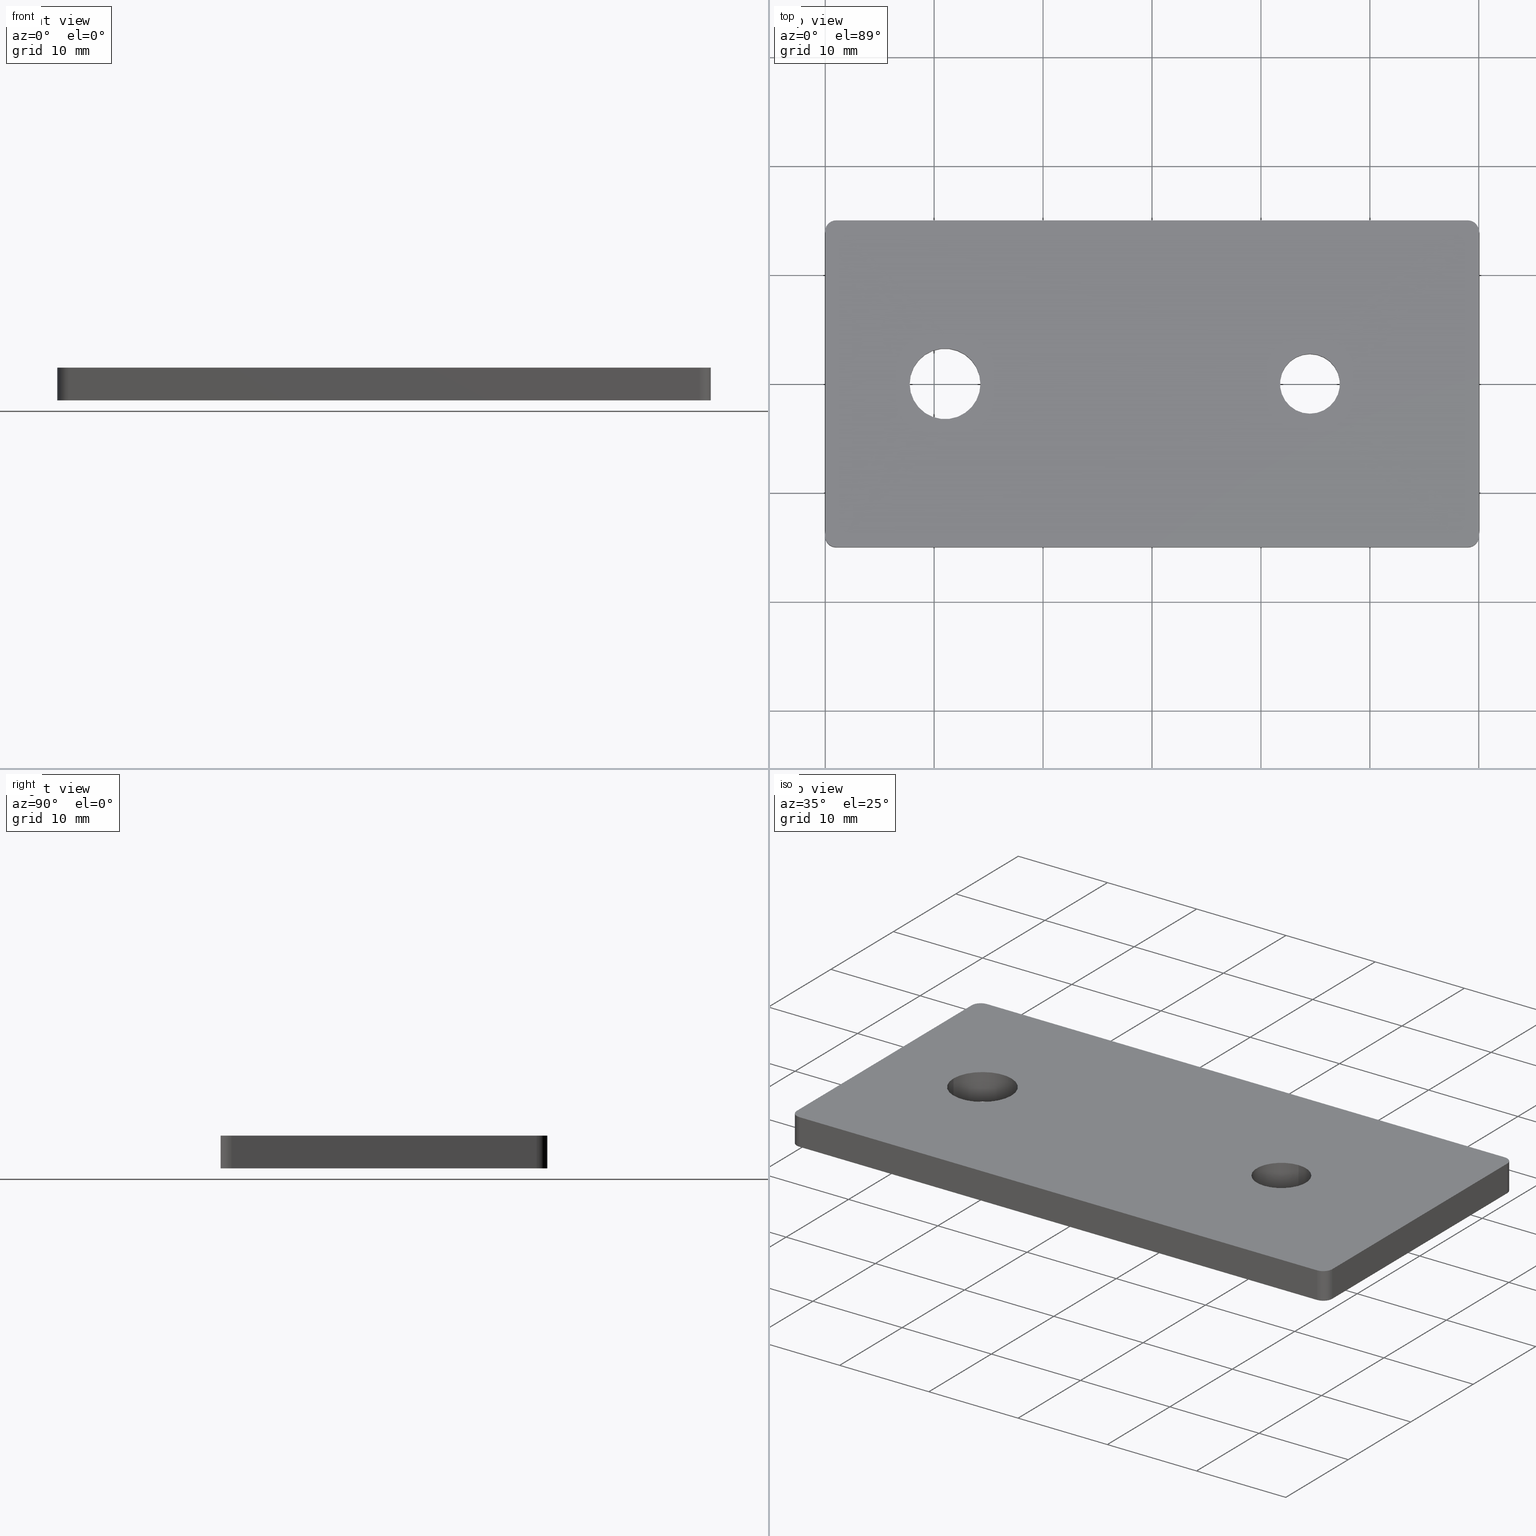
[diagram: canonical four-view strip — front | top / right | iso, engineering-drawing reading convention]
A machine part, canonical four-view strip (front | top / right | iso — engineering-drawing reading convention). The complete STEP part file that produces these views, byte-faithful:
ISO-10303-21;
HEADER;
/****************************************************************
 * Generated by software with PDE/Lib inside                    *
 * PDElib Version v4.4, created Mon 02/23/2004                  *
 * International Technegroup Inc. (www.iti-oh.com)              *
 ****************************************************************/
FILE_DESCRIPTION(('STEP AP203'),'2;1');
FILE_NAME('27.201.01.stp','2011-02-14T10:25:53',(''),(''),'2009.3.110','THINKDESIGN','');
FILE_SCHEMA(('CONFIG_CONTROL_DESIGN'));
ENDSEC;
DATA;
#2=CARTESIAN_POINT('',(-49.0,0.0,-9.999994E-009));
#3=DIRECTION('',(0.0,0.0,1.0));
#4=DIRECTION('',(0.0,1.0,0.0));
#5=AXIS2_PLACEMENT_3D('',#2,#3,#4);
#6=CYLINDRICAL_SURFACE('',#5,3.250000000000002);
#7=CARTESIAN_POINT('',(-52.250000000000000,3.552714E-015,0.0));
#8=VERTEX_POINT('',#7);
#9=CARTESIAN_POINT('',(-45.750000000000000,3.552714E-015,0.0));
#10=VERTEX_POINT('',#9);
#11=CARTESIAN_POINT('',(-49.0,3.552714E-015,0.0));
#12=DIRECTION('',(0.0,0.0,1.0));
#13=DIRECTION('',(1.0,0.0,0.0));
#14=AXIS2_PLACEMENT_3D('',#11,#12,#13);
#15=CIRCLE('',#14,3.250000000000002);
#16=EDGE_CURVE('',#8,#10,#15,.T.);
#17=ORIENTED_EDGE('',*,*,#16,.F.);
#18=CARTESIAN_POINT('',(-52.250000000000000,3.552714E-015,3.0));
#19=VERTEX_POINT('',#18);
#20=CARTESIAN_POINT('',(-52.250000000000000,3.552714E-015,0.0));
#21=DIRECTION('',(0.0,0.0,1.0));
#22=VECTOR('',#21,3.0);
#23=LINE('',#20,#22);
#24=EDGE_CURVE('',#8,#19,#23,.T.);
#25=ORIENTED_EDGE('',*,*,#24,.T.);
#26=CARTESIAN_POINT('',(-45.750000000000000,3.552714E-015,3.0));
#27=VERTEX_POINT('',#26);
#28=CARTESIAN_POINT('',(-49.0,3.552714E-015,3.0));
#29=DIRECTION('',(0.0,0.0,1.0));
#30=DIRECTION('',(0.0,1.0,0.0));
#31=AXIS2_PLACEMENT_3D('',#28,#29,#30);
#32=CIRCLE('',#31,3.250000000000000);
#33=EDGE_CURVE('',#19,#27,#32,.T.);
#34=ORIENTED_EDGE('',*,*,#33,.T.);
#35=CARTESIAN_POINT('',(-45.750000000000000,3.552714E-015,0.0));
#36=DIRECTION('',(0.0,0.0,1.0));
#37=VECTOR('',#36,3.0);
#38=LINE('',#35,#37);
#39=EDGE_CURVE('',#10,#27,#38,.T.);
#40=ORIENTED_EDGE('',*,*,#39,.F.);
#41=EDGE_LOOP('',(#17,#25,#34,#40));
#42=FACE_OUTER_BOUND('',#41,.T.);
#43=ADVANCED_FACE('',(#42),#6,.F.);
#44=CARTESIAN_POINT('',(-15.500000000000004,7.105427E-015,3.000000010000000));
#45=DIRECTION('',(0.0,0.0,-1.0));
#46=DIRECTION('',(-1.0,0.0,0.0));
#47=AXIS2_PLACEMENT_3D('',#44,#45,#46);
#48=CYLINDRICAL_SURFACE('',#47,2.749999999999999);
#49=CARTESIAN_POINT('',(-15.500000000000004,2.750000000000000,3.0));
#50=VERTEX_POINT('',#49);
#51=CARTESIAN_POINT('',(-15.500000000000004,-2.749999999999996,3.0));
#52=VERTEX_POINT('',#51);
#53=CARTESIAN_POINT('',(-15.500000000000004,3.552714E-015,3.0));
#54=DIRECTION('',(0.0,0.0,-1.0));
#55=DIRECTION('',(0.0,-1.0,0.0));
#56=AXIS2_PLACEMENT_3D('',#53,#54,#55);
#57=CIRCLE('',#56,2.749999999999999);
#58=EDGE_CURVE('',#50,#52,#57,.T.);
#59=ORIENTED_EDGE('',*,*,#58,.F.);
#60=CARTESIAN_POINT('',(-15.500000000000004,2.750000000000000,0.0));
#61=VERTEX_POINT('',#60);
#62=CARTESIAN_POINT('',(-15.500000000000004,2.750000000000000,3.0));
#63=DIRECTION('',(0.0,0.0,-1.0));
#64=VECTOR('',#63,3.0);
#65=LINE('',#62,#64);
#66=EDGE_CURVE('',#50,#61,#65,.T.);
#67=ORIENTED_EDGE('',*,*,#66,.T.);
#68=CARTESIAN_POINT('',(-15.500000000000004,-2.749999999999996,0.0));
#69=VERTEX_POINT('',#68);
#70=CARTESIAN_POINT('',(-15.500000000000004,3.552714E-015,0.0));
#71=DIRECTION('',(0.0,0.0,1.0));
#72=DIRECTION('',(1.0,0.0,0.0));
#73=AXIS2_PLACEMENT_3D('',#70,#71,#72);
#74=CIRCLE('',#73,2.750000000000003);
#75=EDGE_CURVE('',#69,#61,#74,.T.);
#76=ORIENTED_EDGE('',*,*,#75,.F.);
#77=CARTESIAN_POINT('',(-15.500000000000004,-2.749999999999996,3.0));
#78=DIRECTION('',(0.0,0.0,-1.0));
#79=VECTOR('',#78,3.0);
#80=LINE('',#77,#79);
#81=EDGE_CURVE('',#52,#69,#80,.T.);
#82=ORIENTED_EDGE('',*,*,#81,.F.);
#83=EDGE_LOOP('',(#59,#67,#76,#82));
#84=FACE_OUTER_BOUND('',#83,.T.);
#85=ADVANCED_FACE('',(#84),#48,.F.);
#86=CARTESIAN_POINT('',(-59.0,-13.999999999999986,3.000000010000000));
#87=DIRECTION('',(0.0,0.0,-1.0));
#88=DIRECTION('',(0.707106781186547,0.707106781186548,0.0));
#89=AXIS2_PLACEMENT_3D('',#86,#87,#88);
#90=CYLINDRICAL_SURFACE('',#89,1.000000000000001);
#91=CARTESIAN_POINT('',(-60.0,-13.999999999999993,0.0));
#92=VERTEX_POINT('',#91);
#93=CARTESIAN_POINT('',(-59.0,-14.999999999999993,0.0));
#94=VERTEX_POINT('',#93);
#95=CARTESIAN_POINT('',(-59.0,-13.999999999999993,0.0));
#96=DIRECTION('',(0.0,0.0,1.0));
#97=DIRECTION('',(1.0,0.0,0.0));
#98=AXIS2_PLACEMENT_3D('',#95,#96,#97);
#99=CIRCLE('',#98,1.000000000000001);
#100=EDGE_CURVE('',#92,#94,#99,.T.);
#101=ORIENTED_EDGE('',*,*,#100,.T.);
#102=CARTESIAN_POINT('',(-59.0,-14.999999999999993,3.0));
#103=VERTEX_POINT('',#102);
#104=CARTESIAN_POINT('',(-59.0,-14.999999999999993,3.0));
#105=DIRECTION('',(0.0,0.0,-1.0));
#106=VECTOR('',#105,3.0);
#107=LINE('',#104,#106);
#108=EDGE_CURVE('',#103,#94,#107,.T.);
#109=ORIENTED_EDGE('',*,*,#108,.F.);
#110=CARTESIAN_POINT('',(-60.0,-13.999999999999993,3.0));
#111=VERTEX_POINT('',#110);
#112=CARTESIAN_POINT('',(-59.0,-13.999999999999993,3.0));
#113=DIRECTION('',(0.0,0.0,1.0));
#114=DIRECTION('',(1.0,0.0,0.0));
#115=AXIS2_PLACEMENT_3D('',#112,#113,#114);
#116=CIRCLE('',#115,1.000000000000001);
#117=EDGE_CURVE('',#111,#103,#116,.T.);
#118=ORIENTED_EDGE('',*,*,#117,.F.);
#119=CARTESIAN_POINT('',(-60.0,-13.999999999999993,3.0));
#120=DIRECTION('',(0.0,0.0,-1.0));
#121=VECTOR('',#120,3.0);
#122=LINE('',#119,#121);
#123=EDGE_CURVE('',#111,#92,#122,.T.);
#124=ORIENTED_EDGE('',*,*,#123,.T.);
#125=EDGE_LOOP('',(#101,#109,#118,#124));
#126=FACE_OUTER_BOUND('',#125,.T.);
#127=ADVANCED_FACE('',(#126),#90,.T.);
#128=CARTESIAN_POINT('',(-61.900000000000006,-14.999999999999993,-0.150000000000000));
#129=DIRECTION('',(0.0,1.0,0.0));
#130=DIRECTION('',(0.0,0.0,1.0));
#131=AXIS2_PLACEMENT_3D('',#128,#129,#130);
#132=PLANE('',#131);
#133=CARTESIAN_POINT('',(-1.0,-14.999999999999993,0.0));
#134=VERTEX_POINT('',#133);
#135=CARTESIAN_POINT('',(-59.0,-14.999999999999993,0.0));
#136=DIRECTION('',(1.0,0.0,0.0));
#137=VECTOR('',#136,58.0);
#138=LINE('',#135,#137);
#139=EDGE_CURVE('',#94,#134,#138,.T.);
#140=ORIENTED_EDGE('',*,*,#139,.T.);
#141=CARTESIAN_POINT('',(-1.0,-14.999999999999993,3.0));
#142=VERTEX_POINT('',#141);
#143=CARTESIAN_POINT('',(-1.0,-14.999999999999993,3.0));
#144=DIRECTION('',(0.0,0.0,-1.0));
#145=VECTOR('',#144,3.0);
#146=LINE('',#143,#145);
#147=EDGE_CURVE('',#142,#134,#146,.T.);
#148=ORIENTED_EDGE('',*,*,#147,.F.);
#149=CARTESIAN_POINT('',(-59.0,-14.999999999999993,3.0));
#150=DIRECTION('',(1.0,0.0,0.0));
#151=VECTOR('',#150,58.0);
#152=LINE('',#149,#151);
#153=EDGE_CURVE('',#103,#142,#152,.T.);
#154=ORIENTED_EDGE('',*,*,#153,.F.);
#155=ORIENTED_EDGE('',*,*,#108,.T.);
#156=EDGE_LOOP('',(#140,#148,#154,#155));
#157=FACE_OUTER_BOUND('',#156,.T.);
#158=ADVANCED_FACE('',(#157),#132,.F.);
#159=CARTESIAN_POINT('',(-1.0,-13.999999999999993,3.000000010000000));
#160=DIRECTION('',(0.0,0.0,-1.0));
#161=DIRECTION('',(-1.0,0.0,0.0));
#162=AXIS2_PLACEMENT_3D('',#159,#160,#161);
#163=CYLINDRICAL_SURFACE('',#162,1.000000000000001);
#164=CARTESIAN_POINT('',(0.0,-13.999999999999993,0.0));
#165=VERTEX_POINT('',#164);
#166=CARTESIAN_POINT('',(-1.0,-13.999999999999993,0.0));
#167=DIRECTION('',(0.0,0.0,1.0));
#168=DIRECTION('',(-1.0,0.0,0.0));
#169=AXIS2_PLACEMENT_3D('',#166,#167,#168);
#170=CIRCLE('',#169,1.000000000000001);
#171=EDGE_CURVE('',#134,#165,#170,.T.);
#172=ORIENTED_EDGE('',*,*,#171,.T.);
#173=CARTESIAN_POINT('',(0.0,-13.999999999999993,3.0));
#174=VERTEX_POINT('',#173);
#175=CARTESIAN_POINT('',(0.0,-13.999999999999993,3.0));
#176=DIRECTION('',(0.0,0.0,-1.0));
#177=VECTOR('',#176,3.0);
#178=LINE('',#175,#177);
#179=EDGE_CURVE('',#174,#165,#178,.T.);
#180=ORIENTED_EDGE('',*,*,#179,.F.);
#181=CARTESIAN_POINT('',(-1.0,-13.999999999999993,3.0));
#182=DIRECTION('',(0.0,0.0,1.0));
#183=DIRECTION('',(-1.0,0.0,0.0));
#184=AXIS2_PLACEMENT_3D('',#181,#182,#183);
#185=CIRCLE('',#184,1.000000000000001);
#186=EDGE_CURVE('',#142,#174,#185,.T.);
#187=ORIENTED_EDGE('',*,*,#186,.F.);
#188=ORIENTED_EDGE('',*,*,#147,.T.);
#189=EDGE_LOOP('',(#172,#180,#187,#188));
#190=FACE_OUTER_BOUND('',#189,.T.);
#191=ADVANCED_FACE('',(#190),#163,.T.);
#192=CARTESIAN_POINT('',(0.0,-15.399999999999991,-0.150000000000000));
#193=DIRECTION('',(-1.0,0.0,0.0));
#194=DIRECTION('',(0.0,0.0,1.0));
#195=AXIS2_PLACEMENT_3D('',#192,#193,#194);
#196=PLANE('',#195);
#197=CARTESIAN_POINT('',(0.0,13.999999999999995,0.0));
#198=VERTEX_POINT('',#197);
#199=CARTESIAN_POINT('',(0.0,-13.999999999999993,0.0));
#200=DIRECTION('',(0.0,1.0,0.0));
#201=VECTOR('',#200,27.999999999999986);
#202=LINE('',#199,#201);
#203=EDGE_CURVE('',#165,#198,#202,.T.);
#204=ORIENTED_EDGE('',*,*,#203,.T.);
#205=CARTESIAN_POINT('',(0.0,13.999999999999995,3.0));
#206=VERTEX_POINT('',#205);
#207=CARTESIAN_POINT('',(0.0,13.999999999999995,3.0));
#208=DIRECTION('',(0.0,0.0,-1.0));
#209=VECTOR('',#208,3.0);
#210=LINE('',#207,#209);
#211=EDGE_CURVE('',#206,#198,#210,.T.);
#212=ORIENTED_EDGE('',*,*,#211,.F.);
#213=CARTESIAN_POINT('',(0.0,-13.999999999999993,3.0));
#214=DIRECTION('',(0.0,1.0,0.0));
#215=VECTOR('',#214,27.999999999999986);
#216=LINE('',#213,#215);
#217=EDGE_CURVE('',#174,#206,#216,.T.);
#218=ORIENTED_EDGE('',*,*,#217,.F.);
#219=ORIENTED_EDGE('',*,*,#179,.T.);
#220=EDGE_LOOP('',(#204,#212,#218,#219));
#221=FACE_OUTER_BOUND('',#220,.T.);
#222=ADVANCED_FACE('',(#221),#196,.F.);
#223=CARTESIAN_POINT('',(-1.0,13.999999999999996,3.000000010000000));
#224=DIRECTION('',(0.0,0.0,-1.0));
#225=DIRECTION('',(-1.0,0.0,0.0));
#226=AXIS2_PLACEMENT_3D('',#223,#224,#225);
#227=CYLINDRICAL_SURFACE('',#226,1.000000000000001);
#228=CARTESIAN_POINT('',(-1.0,14.999999999999996,0.0));
#229=VERTEX_POINT('',#228);
#230=CARTESIAN_POINT('',(-1.0,13.999999999999996,0.0));
#231=DIRECTION('',(0.0,0.0,1.0));
#232=DIRECTION('',(-1.0,0.0,0.0));
#233=AXIS2_PLACEMENT_3D('',#230,#231,#232);
#234=CIRCLE('',#233,1.000000000000001);
#235=EDGE_CURVE('',#198,#229,#234,.T.);
#236=ORIENTED_EDGE('',*,*,#235,.T.);
#237=CARTESIAN_POINT('',(-1.0,14.999999999999996,3.0));
#238=VERTEX_POINT('',#237);
#239=CARTESIAN_POINT('',(-1.0,14.999999999999996,3.0));
#240=DIRECTION('',(0.0,0.0,-1.0));
#241=VECTOR('',#240,3.0);
#242=LINE('',#239,#241);
#243=EDGE_CURVE('',#238,#229,#242,.T.);
#244=ORIENTED_EDGE('',*,*,#243,.F.);
#245=CARTESIAN_POINT('',(-1.0,13.999999999999996,3.0));
#246=DIRECTION('',(0.0,0.0,1.0));
#247=DIRECTION('',(-1.0,0.0,0.0));
#248=AXIS2_PLACEMENT_3D('',#245,#246,#247);
#249=CIRCLE('',#248,1.000000000000001);
#250=EDGE_CURVE('',#206,#238,#249,.T.);
#251=ORIENTED_EDGE('',*,*,#250,.F.);
#252=ORIENTED_EDGE('',*,*,#211,.T.);
#253=EDGE_LOOP('',(#236,#244,#251,#252));
#254=FACE_OUTER_BOUND('',#253,.T.);
#255=ADVANCED_FACE('',(#254),#227,.T.);
#256=CARTESIAN_POINT('',(-61.900000000000006,14.999999999999996,3.150000000000000));
#257=DIRECTION('',(0.0,-1.0,0.0));
#258=DIRECTION('',(0.0,0.0,-1.0));
#259=AXIS2_PLACEMENT_3D('',#256,#257,#258);
#260=PLANE('',#259);
#261=CARTESIAN_POINT('',(-59.0,14.999999999999996,0.0));
#262=VERTEX_POINT('',#261);
#263=CARTESIAN_POINT('',(-1.0,14.999999999999996,0.0));
#264=DIRECTION('',(-1.0,0.0,0.0));
#265=VECTOR('',#264,58.0);
#266=LINE('',#263,#265);
#267=EDGE_CURVE('',#229,#262,#266,.T.);
#268=ORIENTED_EDGE('',*,*,#267,.T.);
#269=CARTESIAN_POINT('',(-59.0,14.999999999999996,3.0));
#270=VERTEX_POINT('',#269);
#271=CARTESIAN_POINT('',(-59.0,14.999999999999996,3.0));
#272=DIRECTION('',(0.0,0.0,-1.0));
#273=VECTOR('',#272,3.0);
#274=LINE('',#271,#273);
#275=EDGE_CURVE('',#270,#262,#274,.T.);
#276=ORIENTED_EDGE('',*,*,#275,.F.);
#277=CARTESIAN_POINT('',(-1.0,14.999999999999996,3.0));
#278=DIRECTION('',(-1.0,0.0,0.0));
#279=VECTOR('',#278,58.0);
#280=LINE('',#277,#279);
#281=EDGE_CURVE('',#238,#270,#280,.T.);
#282=ORIENTED_EDGE('',*,*,#281,.F.);
#283=ORIENTED_EDGE('',*,*,#243,.T.);
#284=EDGE_LOOP('',(#268,#276,#282,#283));
#285=FACE_OUTER_BOUND('',#284,.T.);
#286=ADVANCED_FACE('',(#285),#260,.F.);
#287=CARTESIAN_POINT('',(-59.0,14.0,3.000000010000000));
#288=DIRECTION('',(0.0,0.0,-1.0));
#289=DIRECTION('',(0.707106781186547,-0.707106781186548,0.0));
#290=AXIS2_PLACEMENT_3D('',#287,#288,#289);
#291=CYLINDRICAL_SURFACE('',#290,1.000000000000001);
#292=CARTESIAN_POINT('',(-60.0,13.999999999999998,0.0));
#293=VERTEX_POINT('',#292);
#294=CARTESIAN_POINT('',(-59.0,13.999999999999996,0.0));
#295=DIRECTION('',(0.0,0.0,1.0));
#296=DIRECTION('',(1.0,0.0,0.0));
#297=AXIS2_PLACEMENT_3D('',#294,#295,#296);
#298=CIRCLE('',#297,1.000000000000001);
#299=EDGE_CURVE('',#262,#293,#298,.T.);
#300=ORIENTED_EDGE('',*,*,#299,.T.);
#301=CARTESIAN_POINT('',(-60.0,13.999999999999998,3.0));
#302=VERTEX_POINT('',#301);
#303=CARTESIAN_POINT('',(-60.0,13.999999999999998,3.0));
#304=DIRECTION('',(0.0,0.0,-1.0));
#305=VECTOR('',#304,3.0);
#306=LINE('',#303,#305);
#307=EDGE_CURVE('',#302,#293,#306,.T.);
#308=ORIENTED_EDGE('',*,*,#307,.F.);
#309=CARTESIAN_POINT('',(-59.0,13.999999999999996,3.0));
#310=DIRECTION('',(0.0,0.0,1.0));
#311=DIRECTION('',(1.0,0.0,0.0));
#312=AXIS2_PLACEMENT_3D('',#309,#310,#311);
#313=CIRCLE('',#312,1.000000000000001);
#314=EDGE_CURVE('',#270,#302,#313,.T.);
#315=ORIENTED_EDGE('',*,*,#314,.F.);
#316=ORIENTED_EDGE('',*,*,#275,.T.);
#317=EDGE_LOOP('',(#300,#308,#315,#316));
#318=FACE_OUTER_BOUND('',#317,.T.);
#319=ADVANCED_FACE('',(#318),#291,.T.);
#320=CARTESIAN_POINT('',(-60.0,-15.399999999999991,3.150000000000000));
#321=DIRECTION('',(1.0,0.0,0.0));
#322=DIRECTION('',(0.0,0.0,-1.0));
#323=AXIS2_PLACEMENT_3D('',#320,#321,#322);
#324=PLANE('',#323);
#325=CARTESIAN_POINT('',(-60.0,13.999999999999998,0.0));
#326=DIRECTION('',(0.0,-1.0,0.0));
#327=VECTOR('',#326,27.999999999999993);
#328=LINE('',#325,#327);
#329=EDGE_CURVE('',#293,#92,#328,.T.);
#330=ORIENTED_EDGE('',*,*,#329,.T.);
#331=ORIENTED_EDGE('',*,*,#123,.F.);
#332=CARTESIAN_POINT('',(-60.0,13.999999999999998,3.0));
#333=DIRECTION('',(0.0,-1.0,0.0));
#334=VECTOR('',#333,27.999999999999993);
#335=LINE('',#332,#334);
#336=EDGE_CURVE('',#302,#111,#335,.T.);
#337=ORIENTED_EDGE('',*,*,#336,.F.);
#338=ORIENTED_EDGE('',*,*,#307,.T.);
#339=EDGE_LOOP('',(#330,#331,#337,#338));
#340=FACE_OUTER_BOUND('',#339,.T.);
#341=ADVANCED_FACE('',(#340),#324,.F.);
#342=CARTESIAN_POINT('',(-63.0,-16.499999999999993,3.0));
#343=DIRECTION('',(0.0,0.0,1.0));
#344=DIRECTION('',(1.0,0.0,0.0));
#345=AXIS2_PLACEMENT_3D('',#342,#343,#344);
#346=PLANE('',#345);
#347=ORIENTED_EDGE('',*,*,#117,.T.);
#348=ORIENTED_EDGE('',*,*,#153,.T.);
#349=ORIENTED_EDGE('',*,*,#186,.T.);
#350=ORIENTED_EDGE('',*,*,#217,.T.);
#351=ORIENTED_EDGE('',*,*,#250,.T.);
#352=ORIENTED_EDGE('',*,*,#281,.T.);
#353=ORIENTED_EDGE('',*,*,#314,.T.);
#354=ORIENTED_EDGE('',*,*,#336,.T.);
#355=EDGE_LOOP('',(#347,#348,#349,#350,#351,#352,#353,#354));
#356=FACE_OUTER_BOUND('',#355,.T.);
#357=CARTESIAN_POINT('',(-15.500000000000004,3.552714E-015,3.0));
#358=DIRECTION('',(0.0,0.0,-1.0));
#359=DIRECTION('',(0.0,-1.0,0.0));
#360=AXIS2_PLACEMENT_3D('',#357,#358,#359);
#361=CIRCLE('',#360,2.749999999999999);
#362=EDGE_CURVE('',#52,#50,#361,.T.);
#363=ORIENTED_EDGE('',*,*,#362,.T.);
#364=ORIENTED_EDGE('',*,*,#58,.T.);
#365=EDGE_LOOP('',(#363,#364));
#366=FACE_BOUND('',#365,.T.);
#367=CARTESIAN_POINT('',(-49.0,3.552714E-015,3.0));
#368=DIRECTION('',(0.0,0.0,1.0));
#369=DIRECTION('',(0.0,1.0,0.0));
#370=AXIS2_PLACEMENT_3D('',#367,#368,#369);
#371=CIRCLE('',#370,3.250000000000000);
#372=EDGE_CURVE('',#27,#19,#371,.T.);
#373=ORIENTED_EDGE('',*,*,#372,.F.);
#374=ORIENTED_EDGE('',*,*,#33,.F.);
#375=EDGE_LOOP('',(#373,#374));
#376=FACE_BOUND('',#375,.T.);
#377=ADVANCED_FACE('',(#356,#366,#376),#346,.T.);
#378=CARTESIAN_POINT('',(-63.0,-16.499999999999993,0.0));
#379=DIRECTION('',(0.0,0.0,1.0));
#380=DIRECTION('',(1.0,0.0,0.0));
#381=AXIS2_PLACEMENT_3D('',#378,#379,#380);
#382=PLANE('',#381);
#383=ORIENTED_EDGE('',*,*,#100,.F.);
#384=ORIENTED_EDGE('',*,*,#329,.F.);
#385=ORIENTED_EDGE('',*,*,#299,.F.);
#386=ORIENTED_EDGE('',*,*,#267,.F.);
#387=ORIENTED_EDGE('',*,*,#235,.F.);
#388=ORIENTED_EDGE('',*,*,#203,.F.);
#389=ORIENTED_EDGE('',*,*,#171,.F.);
#390=ORIENTED_EDGE('',*,*,#139,.F.);
#391=EDGE_LOOP('',(#383,#384,#385,#386,#387,#388,#389,#390));
#392=FACE_OUTER_BOUND('',#391,.T.);
#393=ORIENTED_EDGE('',*,*,#75,.T.);
#394=CARTESIAN_POINT('',(-15.500000000000004,3.552714E-015,0.0));
#395=DIRECTION('',(0.0,0.0,1.0));
#396=DIRECTION('',(1.0,0.0,0.0));
#397=AXIS2_PLACEMENT_3D('',#394,#395,#396);
#398=CIRCLE('',#397,2.750000000000003);
#399=EDGE_CURVE('',#61,#69,#398,.T.);
#400=ORIENTED_EDGE('',*,*,#399,.T.);
#401=EDGE_LOOP('',(#393,#400));
#402=FACE_BOUND('',#401,.T.);
#403=CARTESIAN_POINT('',(-49.0,3.552714E-015,0.0));
#404=DIRECTION('',(0.0,0.0,1.0));
#405=DIRECTION('',(1.0,0.0,0.0));
#406=AXIS2_PLACEMENT_3D('',#403,#404,#405);
#407=CIRCLE('',#406,3.250000000000002);
#408=EDGE_CURVE('',#10,#8,#407,.T.);
#409=ORIENTED_EDGE('',*,*,#408,.T.);
#410=ORIENTED_EDGE('',*,*,#16,.T.);
#411=EDGE_LOOP('',(#409,#410));
#412=FACE_BOUND('',#411,.T.);
#413=ADVANCED_FACE('',(#392,#402,#412),#382,.F.);
#414=CARTESIAN_POINT('',(-15.500000000000004,3.552714E-015,3.000000010000000));
#415=DIRECTION('',(0.0,0.0,-1.0));
#416=DIRECTION('',(1.0,0.0,0.0));
#417=AXIS2_PLACEMENT_3D('',#414,#415,#416);
#418=CYLINDRICAL_SURFACE('',#417,2.749999999999999);
#419=ORIENTED_EDGE('',*,*,#66,.F.);
#420=ORIENTED_EDGE('',*,*,#362,.F.);
#421=ORIENTED_EDGE('',*,*,#81,.T.);
#422=ORIENTED_EDGE('',*,*,#399,.F.);
#423=EDGE_LOOP('',(#419,#420,#421,#422));
#424=FACE_OUTER_BOUND('',#423,.T.);
#425=ADVANCED_FACE('',(#424),#418,.F.);
#426=CARTESIAN_POINT('',(-49.0,0.0,-9.999994E-009));
#427=DIRECTION('',(0.0,0.0,1.0));
#428=DIRECTION('',(0.0,-1.0,0.0));
#429=AXIS2_PLACEMENT_3D('',#426,#427,#428);
#430=CYLINDRICAL_SURFACE('',#429,3.250000000000002);
#431=ORIENTED_EDGE('',*,*,#24,.F.);
#432=ORIENTED_EDGE('',*,*,#408,.F.);
#433=ORIENTED_EDGE('',*,*,#39,.T.);
#434=ORIENTED_EDGE('',*,*,#372,.T.);
#435=EDGE_LOOP('',(#431,#432,#433,#434));
#436=FACE_OUTER_BOUND('',#435,.T.);
#437=ADVANCED_FACE('',(#436),#430,.F.);
#438=CLOSED_SHELL('',(#43,#85,#127,#158,#191,#222,#255,#286,#319,#341,#377,#413,#425,#437));
#439=MANIFOLD_SOLID_BREP('Importato1',#438);
#445=(NAMED_UNIT(*)PLANE_ANGLE_UNIT()SI_UNIT($,.RADIAN.));
#446=DIMENSIONAL_EXPONENTS(0.0,0.0,0.0,0.0,0.0,0.0,0.0);
#447=PLANE_ANGLE_MEASURE_WITH_UNIT(PLANE_ANGLE_MEASURE(0.017453292500000),#445);
#451=(CONVERSION_BASED_UNIT('DEGREE',#447)NAMED_UNIT(#446)PLANE_ANGLE_UNIT());
#455=(NAMED_UNIT(*)SI_UNIT($,.STERADIAN.)SOLID_ANGLE_UNIT());
#459=(LENGTH_UNIT()NAMED_UNIT(*)SI_UNIT(.MILLI.,.METRE.));
#461=UNCERTAINTY_MEASURE_WITH_UNIT(LENGTH_MEASURE(0.001000000000000),#459,'DISTANCE_ACCURACY_VALUE','');
#463=(GEOMETRIC_REPRESENTATION_CONTEXT(3)GLOBAL_UNCERTAINTY_ASSIGNED_CONTEXT((#461))GLOBAL_UNIT_ASSIGNED_CONTEXT((#451,#455,#459))REPRESENTATION_CONTEXT('thinkdesign','2009.3.110'));
#464=ADVANCED_BREP_SHAPE_REPRESENTATION('',(#439),#463);
#465=APPLICATION_CONTEXT('configuration controlled 3D designs of mechanical parts and assemblies');
#466=APPLICATION_PROTOCOL_DEFINITION('International Standard','config_control_design',1995,#465);
#467=MECHANICAL_CONTEXT('None',#465,'mechanical');
#468=PRODUCT('None','None','None',(#467));
#469=PRODUCT_RELATED_PRODUCT_CATEGORY('detail',$,(#468));
#470=PRODUCT_CATEGORY('part',$);
#471=PRODUCT_CATEGORY_RELATIONSHIP('None','None',#470,#469);
#472=PERSON('PERSON1','None','None',$,$,$);
#473=ORGANIZATION('','None','None');
#474=PERSON_AND_ORGANIZATION(#472,#473);
#475=PERSON_AND_ORGANIZATION_ROLE('design_owner');
#476=CC_DESIGN_PERSON_AND_ORGANIZATION_ASSIGNMENT(#474,#475,(#468));
#477=PRODUCT_DEFINITION_FORMATION_WITH_SPECIFIED_SOURCE('None','None',#468,.NOT_KNOWN.);
#478=PERSON('PERSON2','None','None',$,$,$);
#479=ORGANIZATION('','None','None');
#480=PERSON_AND_ORGANIZATION(#478,#479);
#481=PERSON_AND_ORGANIZATION_ROLE('creator');
#482=CC_DESIGN_PERSON_AND_ORGANIZATION_ASSIGNMENT(#480,#481,(#477));
#483=PERSON('PERSON3','None','None',$,$,$);
#484=ORGANIZATION('','None','None');
#485=PERSON_AND_ORGANIZATION(#483,#484);
#486=PERSON_AND_ORGANIZATION_ROLE('part_supplier');
#487=CC_DESIGN_PERSON_AND_ORGANIZATION_ASSIGNMENT(#485,#486,(#477));
#488=APPROVAL_STATUS('approved');
#489=APPROVAL(#488,'None');
#490=PERSON('PERSON4','None','None',$,$,$);
#491=ORGANIZATION('','None','None');
#492=PERSON_AND_ORGANIZATION(#490,#491);
#493=APPROVAL_ROLE('None');
#494=APPROVAL_PERSON_ORGANIZATION(#492,#489,#493);
#495=CALENDAR_DATE(2011,14,2);
#496=COORDINATED_UNIVERSAL_TIME_OFFSET(0,0,.AHEAD.);
#497=LOCAL_TIME(10,25,53.0,#496);
#498=DATE_AND_TIME(#495,#497);
#499=APPROVAL_DATE_TIME(#498,#489);
#500=CC_DESIGN_APPROVAL(#489,(#477));
#501=SECURITY_CLASSIFICATION_LEVEL('unclassified');
#502=SECURITY_CLASSIFICATION('None','None',#501);
#503=CC_DESIGN_SECURITY_CLASSIFICATION(#502,(#477));
#504=APPROVAL_STATUS('approved');
#505=APPROVAL(#504,'None');
#506=PERSON('PERSON5','None','None',$,$,$);
#507=ORGANIZATION('','None','None');
#508=PERSON_AND_ORGANIZATION(#506,#507);
#509=APPROVAL_ROLE('None');
#510=APPROVAL_PERSON_ORGANIZATION(#508,#505,#509);
#511=CALENDAR_DATE(2011,14,2);
#512=COORDINATED_UNIVERSAL_TIME_OFFSET(0,0,.AHEAD.);
#513=LOCAL_TIME(10,25,53.0,#512);
#514=DATE_AND_TIME(#511,#513);
#515=APPROVAL_DATE_TIME(#514,#505);
#516=CC_DESIGN_APPROVAL(#505,(#502));
#517=PERSON('PERSON6','None','None',$,$,$);
#518=ORGANIZATION('','None','None');
#519=PERSON_AND_ORGANIZATION(#517,#518);
#520=PERSON_AND_ORGANIZATION_ROLE('classification_officer');
#521=CC_DESIGN_PERSON_AND_ORGANIZATION_ASSIGNMENT(#519,#520,(#502));
#522=DATE_TIME_ROLE('classification_date');
#523=CALENDAR_DATE(2011,14,2);
#524=COORDINATED_UNIVERSAL_TIME_OFFSET(0,0,.AHEAD.);
#525=LOCAL_TIME(10,25,53.0,#524);
#526=DATE_AND_TIME(#523,#525);
#527=CC_DESIGN_DATE_AND_TIME_ASSIGNMENT(#526,#522,(#502));
#528=DESIGN_CONTEXT('part definition',#465,'design');
#529=DOCUMENT_TYPE('cad_filename');
#530=DOCUMENT('None','None','None',#529);
#531=PRODUCT_DEFINITION_WITH_ASSOCIATED_DOCUMENTS('None','None',#477,#528,(#530));
#532=PERSON('PERSON7','None','None',$,$,$);
#533=ORGANIZATION('','None','None');
#534=PERSON_AND_ORGANIZATION(#532,#533);
#535=PERSON_AND_ORGANIZATION_ROLE('creator');
#536=CC_DESIGN_PERSON_AND_ORGANIZATION_ASSIGNMENT(#534,#535,(#531));
#537=DATE_TIME_ROLE('creation_date');
#538=CALENDAR_DATE(2011,14,2);
#539=COORDINATED_UNIVERSAL_TIME_OFFSET(0,0,.AHEAD.);
#540=LOCAL_TIME(10,25,53.0,#539);
#541=DATE_AND_TIME(#538,#540);
#542=CC_DESIGN_DATE_AND_TIME_ASSIGNMENT(#541,#537,(#531));
#543=APPROVAL_STATUS('approved');
#544=APPROVAL(#543,'None');
#545=PERSON('PERSON8','None','None',$,$,$);
#546=ORGANIZATION('','None','None');
#547=PERSON_AND_ORGANIZATION(#545,#546);
#548=APPROVAL_ROLE('None');
#549=APPROVAL_PERSON_ORGANIZATION(#547,#544,#548);
#550=CALENDAR_DATE(2011,14,2);
#551=COORDINATED_UNIVERSAL_TIME_OFFSET(0,0,.AHEAD.);
#552=LOCAL_TIME(10,25,53.0,#551);
#553=DATE_AND_TIME(#550,#552);
#554=APPROVAL_DATE_TIME(#553,#544);
#555=CC_DESIGN_APPROVAL(#544,(#531));
#556=PRODUCT_DEFINITION_SHAPE('None','None',#531);
#557=SHAPE_DEFINITION_REPRESENTATION(#556,#464);
#558=DIMENSIONAL_EXPONENTS(0.0,0.0,0.0,0.0,0.0,0.0,0.0);
#559=DIMENSIONAL_EXPONENTS(1.0,0.0,0.0,0.0,0.0,0.0,0.0);
ENDSEC;
END-ISO-10303-21;
